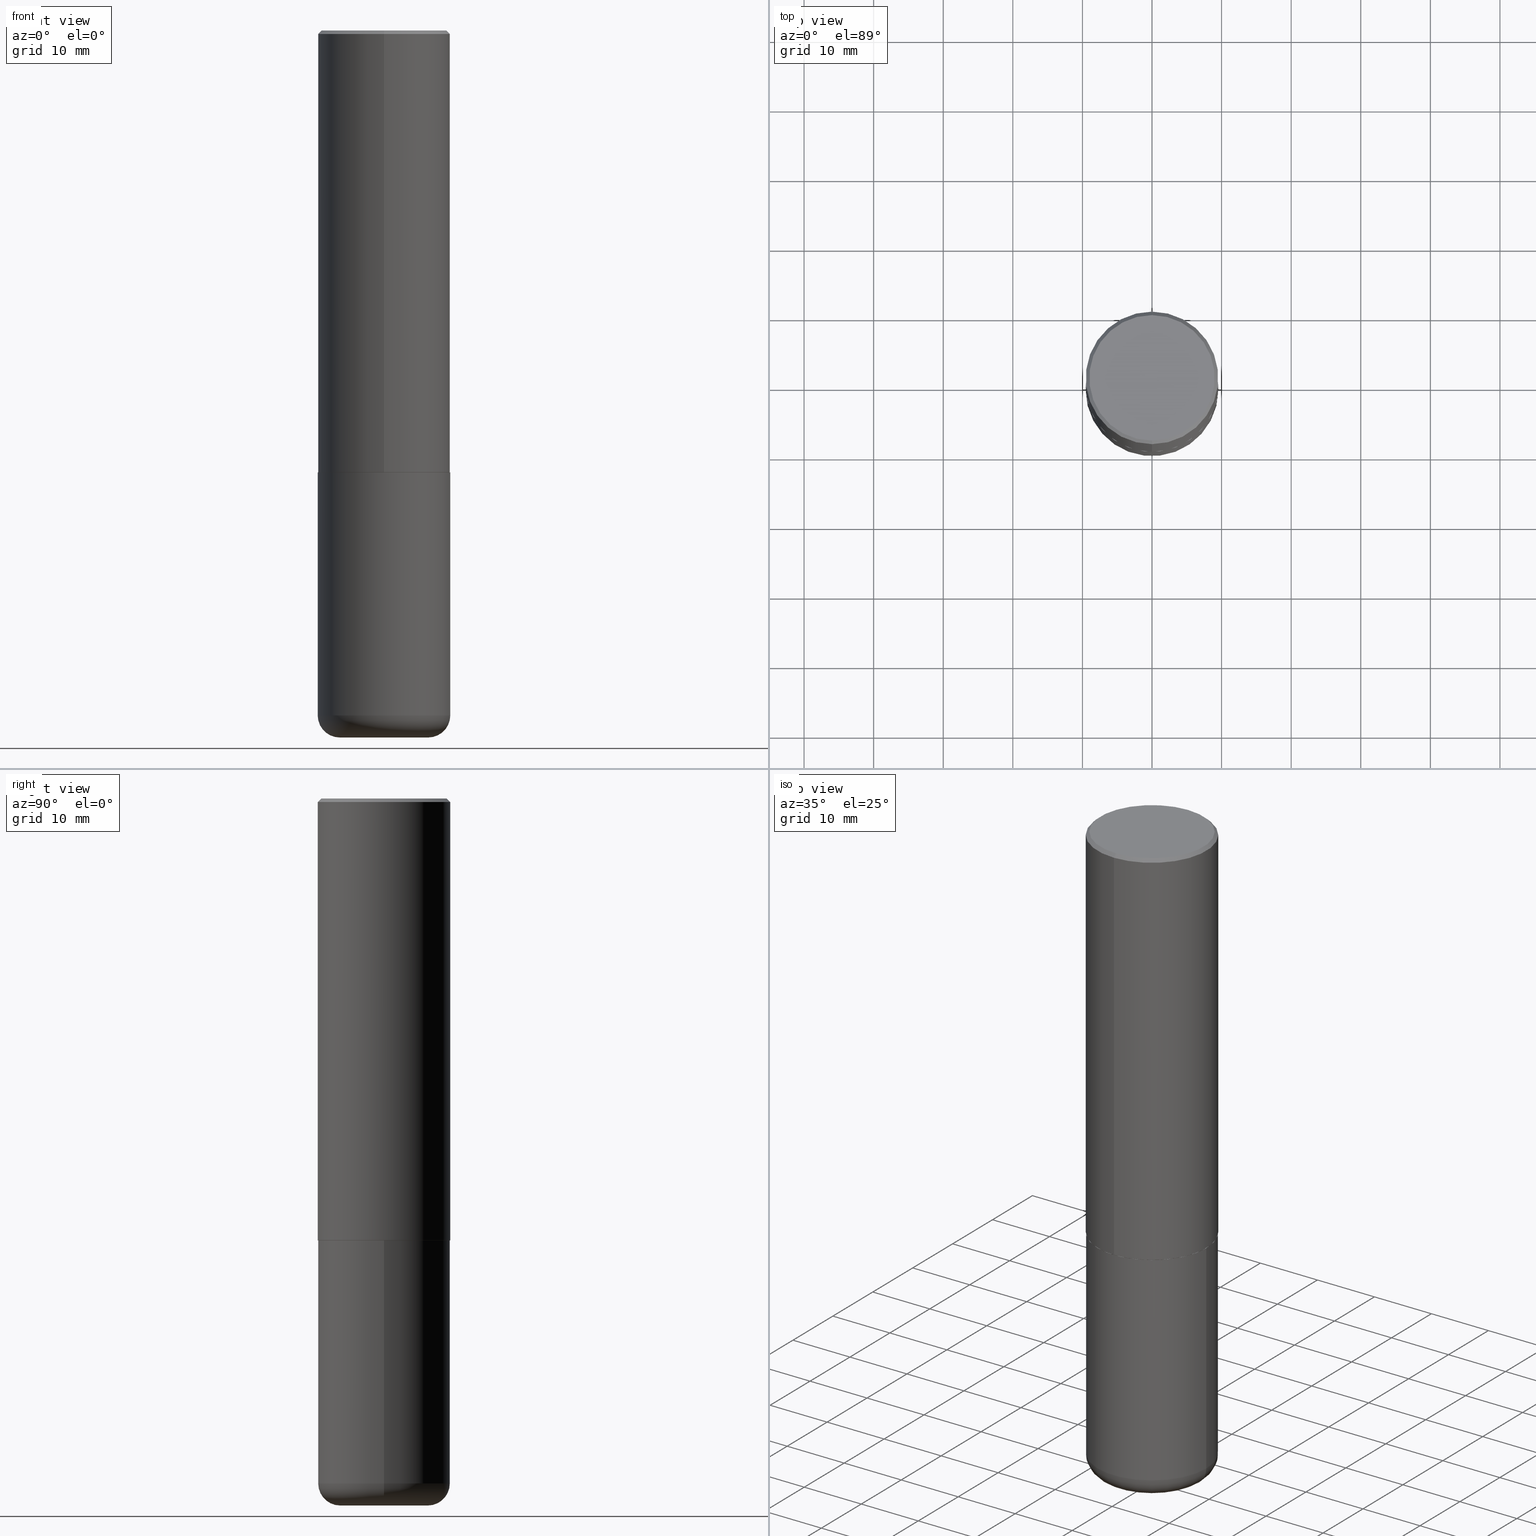
[diagram: canonical four-view strip — front | top / right | iso, engineering-drawing reading convention]
A machine part, canonical four-view strip (front | top / right | iso — engineering-drawing reading convention). The complete STEP part file that produces these views, byte-faithful:
ISO-10303-21;
HEADER;
FILE_DESCRIPTION (( 'STEP AP203' ),
    '1' );
FILE_NAME ('38391.STEP',
    '2024-03-03T02:32:34',
    ( '' ),
    ( '' ),
    'SwSTEP 2.0',
    'SolidWorks 2023',
    '' );
FILE_SCHEMA (( 'CONFIG_CONTROL_DESIGN' ));
ENDSEC;

DATA;
#1 = PRODUCT ( '38391', '38391', '', ( #162 ) ) ;
#2 = ORIENTED_EDGE ( 'NONE', *, *, #379, .T. ) ;
#3 = LENGTH_MEASURE_WITH_UNIT ( LENGTH_MEASURE( 0.02539999999999999897 ), #257 );
#4 = ORIENTED_EDGE ( 'NONE', *, *, #99, .T. ) ;
#5 = CALENDAR_DATE ( 2024, 2, 3 ) ;
#6 = ORIENTED_EDGE ( 'NONE', *, *, #26, .F. ) ;
#7 = TOROIDAL_SURFACE ( 'NONE', #121, 0.2500000000000000555, 0.1249999999999999167 ) ;
#8 = APPROVAL_DATE_TIME ( #317, #277 ) ;
#9 = CARTESIAN_POINT ( 'NONE',  ( 6.113672015462840371E-29, -8.728703347107863365E-15, -2.499999999999999556 ) ) ;
#10 = AXIS2_PLACEMENT_3D ( 'NONE', #253, #302, #174 ) ;
#11 = DIRECTION ( 'NONE',  ( 1.000000000000000000, -6.982962677686269077E-15, 0.000000000000000000 ) ) ;
#12 = EDGE_CURVE ( 'NONE', #126, #83, #15, .T. ) ;
#13 = CARTESIAN_POINT ( 'NONE',  ( 4.888791725774251015E-31, -6.986035709428135453E-17, -0.02000000000000008715 ) ) ;
#14 = DIRECTION ( 'NONE',  ( 1.000000000000000000, -6.982962677686263555E-15, 4.883557194083111219E-29 ) ) ;
#15 = CIRCLE ( 'NONE', #347, 0.3750000000000002776 ) ;
#16 = AXIS2_PLACEMENT_3D ( 'NONE', #309, #23, #320 ) ;
#17 = DIRECTION ( 'NONE',  ( 2.444395862887114472E-29, -3.493017854714053009E-15, -1.000000000000000000 ) ) ;
#18 = EDGE_CURVE ( 'NONE', #86, #278, #70, .T. ) ;
#19 = DIRECTION ( 'NONE',  ( -6.982962677686266711E-15, -1.000000000000000000, 3.491481338843145583E-15 ) ) ;
#20 = AXIS2_PLACEMENT_3D ( 'NONE', #167, #362, #69 ) ;
#21 = ORGANIZATION ( 'UNSPECIFIED', 'UNSPECIFIED', '' ) ;
#22 = ORIENTED_EDGE ( 'NONE', *, *, #26, .T. ) ;
#23 = DIRECTION ( 'NONE',  ( -2.444395862887114472E-29, 3.493017854714053009E-15, 1.000000000000000000 ) ) ;
#24 = DIRECTION ( 'NONE',  ( -1.000000000000000000, 6.982962677686265922E-15, -4.876176775795935793E-29 ) ) ;
#25 = VERTEX_POINT ( 'NONE', #202 ) ;
#26 = EDGE_CURVE ( 'NONE', #58, #416, #60, .T. ) ;
#27 = DIRECTION ( 'NONE',  ( -2.444395862887114472E-29, 3.493017854714053009E-15, 1.000000000000000000 ) ) ;
#28 = ORIENTED_EDGE ( 'NONE', *, *, #124, .T. ) ;
#29 = CARTESIAN_POINT ( 'NONE',  ( 0.000000000000000000, 0.000000000000000000, 0.000000000000000000 ) ) ;
#30 = PERSON_AND_ORGANIZATION_ROLE ( 'design_owner' ) ;
#31 = AXIS2_PLACEMENT_3D ( 'NONE', #242, #19, #213 ) ;
#32 = EDGE_LOOP ( 'NONE', ( #49, #262, #93, #388 ) ) ;
#33 = LOCAL_TIME ( 21, 32, 34.00000000000000000, #78 ) ;
#34 = DIRECTION ( 'NONE',  ( -4.851104656540957964E-15, -0.7071067811865491270, -0.7071067811865459074 ) ) ;
#35 = EDGE_LOOP ( 'NONE', ( #2, #28, #6, #284 ) ) ;
#36 = ORIENTED_EDGE ( 'NONE', *, *, #159, .T. ) ;
#37 = DIRECTION ( 'NONE',  ( 2.444395862887114472E-29, -3.493017854714053009E-15, -1.000000000000000000 ) ) ;
#38 = DIRECTION ( 'NONE',  ( -2.444395862887114192E-29, 3.493017854714053009E-15, 1.000000000000000000 ) ) ;
#39 = EDGE_CURVE ( 'NONE', #196, #377, #205, .T. ) ;
#40 = DIRECTION ( 'NONE',  ( -2.445468806185136597E-29, 3.491481338843145583E-15, 1.000000000000000000 ) ) ;
#41 = AXIS2_PLACEMENT_3D ( 'NONE', #225, #37, #358 ) ;
#42 = LINE ( 'NONE', #231, #393 ) ;
#43 = EDGE_LOOP ( 'NONE', ( #95, #130 ) ) ;
#44 = APPROVAL_ROLE ( '' ) ;
#45 = DIRECTION ( 'NONE',  ( -6.982962677686265922E-15, -1.000000000000000000, 3.493017854714053009E-15 ) ) ;
#46 = VECTOR ( 'NONE', #325, 39.37007874015748143 ) ;
#47 = CC_DESIGN_APPROVAL ( #193, ( #418 ) ) ;
#48 = CC_DESIGN_DATE_AND_TIME_ASSIGNMENT ( #287, #363, ( #201 ) ) ;
#49 = ORIENTED_EDGE ( 'NONE', *, *, #159, .F. ) ;
#50 = CARTESIAN_POINT ( 'NONE',  ( 2.657429831742835431E-15, 0.3739999999999912839, -2.500000000000001332 ) ) ;
#51 = ORIENTED_EDGE ( 'NONE', *, *, #217, .F. ) ;
#52 = DIRECTION ( 'NONE',  ( -2.445468806185136597E-29, 3.491481338843145583E-15, 1.000000000000000000 ) ) ;
#53 = EDGE_LOOP ( 'NONE', ( #348, #258, #192, #156 ) ) ;
#54 = CARTESIAN_POINT ( 'NONE',  ( 4.888791725774251015E-31, -6.986035709428135453E-17, -0.02000000000000008715 ) ) ;
#55 = VERTEX_POINT ( 'NONE', #396 ) ;
#56 = CARTESIAN_POINT ( 'NONE',  ( 2.618611004132350411E-15, 0.3749999999999999445, -0.02000000000000139513 ) ) ;
#57 = DIRECTION ( 'NONE',  ( -6.982962677686266711E-15, -1.000000000000000000, 2.921762560068730595E-15 ) ) ;
#58 = VERTEX_POINT ( 'NONE', #230 ) ;
#59 = APPLICATION_CONTEXT ( 'configuration controlled 3d designs of mechanical parts and assemblies' ) ;
#60 = CIRCLE ( 'NONE', #384, 0.3750000000000000555 ) ;
#61 = PERSON_AND_ORGANIZATION ( #310, #21 ) ;
#62 = AXIS2_PLACEMENT_3D ( 'NONE', #403, #142, #273 ) ;
#63 = ORIENTED_EDGE ( 'NONE', *, *, #306, .F. ) ;
#64 = ORIENTED_EDGE ( 'NONE', *, *, #12, .T. ) ;
#65 = DIRECTION ( 'NONE',  ( -2.444395862887114472E-29, 3.493017854714053009E-15, 1.000000000000000000 ) ) ;
#66 = CARTESIAN_POINT ( 'NONE',  ( 0.000000000000000000, 0.000000000000000000, 0.000000000000000000 ) ) ;
#67 = PERSON_AND_ORGANIZATION ( #310, #21 ) ;
#68 = EDGE_CURVE ( 'NONE', #416, #58, #259, .T. ) ;
#69 = DIRECTION ( 'NONE',  ( 1.000000000000000000, -6.982962677686263555E-15, 0.000000000000000000 ) ) ;
#70 = CIRCLE ( 'NONE', #232, 0.2500000000000000555 ) ;
#71 = CYLINDRICAL_SURFACE ( 'NONE', #181, 0.3750000000000001665 ) ;
#72 = DIRECTION ( 'NONE',  ( -2.444395862887114472E-29, 3.493017854714053009E-15, 1.000000000000000000 ) ) ;
#73 = CALENDAR_DATE ( 2024, 2, 3 ) ;
#74 = AXIS2_PLACEMENT_3D ( 'NONE', #134, #198, #133 ) ;
#75 = AXIS2_PLACEMENT_3D ( 'NONE', #119, #52, #220 ) ;
#76 = LOCAL_TIME ( 21, 32, 34.00000000000000000, #367 ) ;
#77 = LINE ( 'NONE', #336, #96 ) ;
#78 = COORDINATED_UNIVERSAL_TIME_OFFSET ( 5, 0, .BEHIND. ) ;
#79 = FACE_OUTER_BOUND ( 'NONE', #35, .T. ) ;
#80 = CARTESIAN_POINT ( 'NONE',  ( 6.113672015462840371E-29, -8.728703347107863365E-15, -2.499999999999999556 ) ) ;
#81 = DIRECTION ( 'NONE',  ( 6.982962677686265922E-15, 1.000000000000000000, -3.494488891895536035E-15 ) ) ;
#82 = CONICAL_SURFACE ( 'NONE', #16, 0.3739999999999999991, 0.7853981633974141952 ) ;
#83 = VERTEX_POINT ( 'NONE', #328 ) ;
#84 = LINE ( 'NONE', #50, #417 ) ;
#85 = EDGE_CURVE ( 'NONE', #83, #118, #395, .T. ) ;
#86 = VERTEX_POINT ( 'NONE', #101 ) ;
#87 = CLOSED_SHELL ( 'NONE', ( #187, #194, #339, #372, #399, #264, #333, #385 ) ) ;
#88 = AXIS2_PLACEMENT_3D ( 'NONE', #267, #171, #238 ) ;
#89 = DIRECTION ( 'NONE',  ( -2.444395862887114472E-29, 3.493017854714053009E-15, 1.000000000000000000 ) ) ;
#90 = CC_DESIGN_APPROVAL ( #412, ( #402 ) ) ;
#91 = ORIENTED_EDGE ( 'NONE', *, *, #346, .T. ) ;
#92 = CARTESIAN_POINT ( 'NONE',  ( 9.781875224740546387E-29, -1.396592535537258233E-14, -4.000000000000000000 ) ) ;
#93 = ORIENTED_EDGE ( 'NONE', *, *, #289, .T. ) ;
#94 = PERSON_AND_ORGANIZATION_ROLE ( 'creator' ) ;
#95 = ORIENTED_EDGE ( 'NONE', *, *, #321, .T. ) ;
#96 = VECTOR ( 'NONE', #203, 39.37007874015748143 ) ;
#97 = ORIENTED_EDGE ( 'NONE', *, *, #346, .F. ) ;
#98 = APPROVAL_DATE_TIME ( #387, #412 ) ;
#99 = EDGE_CURVE ( 'NONE', #83, #126, #237, .T. ) ;
#100 = APPROVAL_ROLE ( '' ) ;
#101 = CARTESIAN_POINT ( 'NONE',  ( -0.2500000000000000555, -1.152726172244457105E-14, -4.000000000000000000 ) ) ;
#102 = APPROVAL_PERSON_ORGANIZATION ( #369, #193, #44 ) ;
#103 = CC_DESIGN_PERSON_AND_ORGANIZATION_ASSIGNMENT ( #361, #94, ( #402 ) ) ;
#104 = CARTESIAN_POINT ( 'NONE',  ( -2.618611004132351200E-15, -0.3750000000000001665, 1.309881695517770421E-15 ) ) ;
#105 = PERSON_AND_ORGANIZATION_ROLE ( 'classification_officer' ) ;
#106 = COORDINATED_UNIVERSAL_TIME_OFFSET ( 5, 0, .BEHIND. ) ;
#107 = CYLINDRICAL_SURFACE ( 'NONE', #10, 0.3749999999999999445 ) ;
#108 = CIRCLE ( 'NONE', #329, 0.1249999999999999306 ) ;
#109 = DIRECTION ( 'NONE',  ( 2.438088387897960049E-29, -3.491481338843145188E-15, -1.000000000000000000 ) ) ;
#110 = EDGE_CURVE ( 'NONE', #55, #123, #301, .T. ) ;
#111 = FACE_OUTER_BOUND ( 'NONE', #43, .T. ) ;
#112 = CARTESIAN_POINT ( 'NONE',  ( 2.664535259100376486E-15, 0.3750000000000001665, -1.309881695517770421E-15 ) ) ;
#113 = ORIENTED_EDGE ( 'NONE', *, *, #243, .T. ) ;
#114 = AXIS2_PLACEMENT_3D ( 'NONE', #29, #65, #386 ) ;
#115 = EDGE_LOOP ( 'NONE', ( #246, #407, #219, #244 ) ) ;
#116 = EDGE_CURVE ( 'NONE', #377, #58, #77, .T. ) ;
#117 = DIRECTION ( 'NONE',  ( -1.000000000000000000, 7.105427357601000281E-15, 0.000000000000000000 ) ) ;
#118 = VERTEX_POINT ( 'NONE', #331 ) ;
#119 = CARTESIAN_POINT ( 'NONE',  ( 9.781875224740546387E-29, -1.396592535537258233E-14, -4.000000000000000000 ) ) ;
#120 = EDGE_LOOP ( 'NONE', ( #22, #381 ) ) ;
#121 = AXIS2_PLACEMENT_3D ( 'NONE', #280, #305, #177 ) ;
#122 = PLANE ( 'NONE',  #356 ) ;
#123 = VERTEX_POINT ( 'NONE', #391 ) ;
#124 = EDGE_CURVE ( 'NONE', #196, #416, #42, .T. ) ;
#125 = APPROVAL_ROLE ( '' ) ;
#126 = VERTEX_POINT ( 'NONE', #400 ) ;
#127 = CYLINDRICAL_SURFACE ( 'NONE', #210, 0.3749999999999999445 ) ;
#128 = CALENDAR_DATE ( 2024, 2, 3 ) ;
#129 = CIRCLE ( 'NONE', #75, 0.2500000000000000555 ) ;
#130 = ORIENTED_EDGE ( 'NONE', *, *, #269, .T. ) ;
#131 = DIMENSIONAL_EXPONENTS ( 1.000000000000000000, 0.000000000000000000, 0.000000000000000000, 0.000000000000000000, 0.000000000000000000, 0.000000000000000000, 0.000000000000000000 ) ;
#132 = PERSON_AND_ORGANIZATION_ROLE ( 'creator' ) ;
#133 = DIRECTION ( 'NONE',  ( 1.000000000000000000, -6.982962677686264344E-15, 0.000000000000000000 ) ) ;
#134 = CARTESIAN_POINT ( 'NONE',  ( 6.113672015462840371E-29, -8.728703347107863365E-15, -2.499999999999999556 ) ) ;
#135 = CIRCLE ( 'NONE', #234, 0.3750000000000000555 ) ;
#136 = DIRECTION ( 'NONE',  ( -2.445468806185136597E-29, 3.491481338843145583E-15, 1.000000000000000000 ) ) ;
#137 = PRODUCT_RELATED_PRODUCT_CATEGORY ( 'detail', '', ( #1 ) ) ;
#138 = ORIENTED_EDGE ( 'NONE', *, *, #110, .F. ) ;
#139 = CARTESIAN_POINT ( 'NONE',  ( 4.888791725774251015E-31, -6.986035709428135453E-17, -0.02000000000000008715 ) ) ;
#140 = ADVANCED_FACE ( 'NONE', ( #345 ), #7, .T. ) ;
#141 = CIRCLE ( 'NONE', #163, 0.3549999999999997602 ) ;
#142 = DIRECTION ( 'NONE',  ( -2.445468806185136597E-29, 3.491481338843145583E-15, 1.000000000000000000 ) ) ;
#143 = DIRECTION ( 'NONE',  ( -2.444395862887114192E-29, 3.493017854714053009E-15, 1.000000000000000000 ) ) ;
#144 = AXIS2_PLACEMENT_3D ( 'NONE', #13, #27, #352 ) ;
#145 = LOCAL_TIME ( 21, 32, 34.00000000000000000, #263 ) ;
#146 = CARTESIAN_POINT ( 'NONE',  ( -5.647657784886327300E-45, 8.070447908802484547E-31, 2.310451375995943946E-16 ) ) ;
#147 = CARTESIAN_POINT ( 'NONE',  ( 6.108545261354898806E-29, -8.729051618930418030E-15, -2.498999999999999666 ) ) ;
#148 = VERTEX_POINT ( 'NONE', #304 ) ;
#149 = CARTESIAN_POINT ( 'NONE',  ( -2.572686749164323547E-15, -0.3750000000000001110, -0.01999999999999877570 ) ) ;
#150 = EDGE_CURVE ( 'NONE', #126, #25, #274, .T. ) ;
#151 = AXIS2_PLACEMENT_3D ( 'NONE', #188, #136, #14 ) ;
#152 = CALENDAR_DATE ( 2024, 2, 3 ) ;
#153 = LOCAL_TIME ( 21, 32, 34.00000000000000000, #106 ) ;
#154 = FACE_OUTER_BOUND ( 'NONE', #115, .T. ) ;
#155 = APPROVAL_STATUS ( 'not_yet_approved' ) ;
#156 = ORIENTED_EDGE ( 'NONE', *, *, #173, .F. ) ;
#157 = LINE ( 'NONE', #56, #46 ) ;
#158 = PERSON_AND_ORGANIZATION ( #310, #21 ) ;
#159 = EDGE_CURVE ( 'NONE', #55, #126, #84, .T. ) ;
#160 = ORIENTED_EDGE ( 'NONE', *, *, #289, .F. ) ;
#161 = DIRECTION ( 'NONE',  ( -2.445468806185136597E-29, 3.491481338843145583E-15, 1.000000000000000000 ) ) ;
#162 = MECHANICAL_CONTEXT ( 'NONE', #59, 'mechanical' ) ;
#163 = AXIS2_PLACEMENT_3D ( 'NONE', #146, #89, #337 ) ;
#164 = DIRECTION ( 'NONE',  ( -2.444395862887114472E-29, 3.493017854714053009E-15, 1.000000000000000000 ) ) ;
#165 = DIRECTION ( 'NONE',  ( -2.444395862887114472E-29, 3.493017854714053009E-15, 1.000000000000000000 ) ) ;
#166 = APPROVAL_STATUS ( 'not_yet_approved' ) ;
#167 = CARTESIAN_POINT ( 'NONE',  ( 9.476191623967404313E-29, -1.352949018801718908E-14, -3.875000000000000000 ) ) ;
#168 = APPROVAL_DATE_TIME ( #335, #193 ) ;
#169 = CONICAL_SURFACE ( 'NONE', #88, 0.3739999999999999991, 0.7853981633974141952 ) ;
#170 = CC_DESIGN_SECURITY_CLASSIFICATION ( #418, ( #402 ) ) ;
#171 = DIRECTION ( 'NONE',  ( -2.444395862887114472E-29, 3.493017854714053009E-15, 1.000000000000000000 ) ) ;
#172 = CC_DESIGN_PERSON_AND_ORGANIZATION_ASSIGNMENT ( #199, #290, ( #402 ) ) ;
#173 = EDGE_CURVE ( 'NONE', #278, #377, #401, .T. ) ;
#174 = DIRECTION ( 'NONE',  ( 1.000000000000000000, -6.982962677686266711E-15, 4.876176775795935793E-29 ) ) ;
#175 = FACE_OUTER_BOUND ( 'NONE', #288, .T. ) ;
#176 = VECTOR ( 'NONE', #283, 39.37007874015748854 ) ;
#177 = DIRECTION ( 'NONE',  ( 1.000000000000000000, -6.982962677686263555E-15, 4.883557194083111219E-29 ) ) ;
#178 = ORIENTED_EDGE ( 'NONE', *, *, #85, .T. ) ;
#179 = EDGE_CURVE ( 'NONE', #86, #196, #108, .T. ) ;
#180 = CLOSED_SHELL ( 'NONE', ( #295, #140, #279, #249, #368, #303 ) ) ;
#181 = AXIS2_PLACEMENT_3D ( 'NONE', #223, #165, #296 ) ;
#182 = DIRECTION ( 'NONE',  ( -1.000000000000000000, 6.982962677686265922E-15, -4.876176775795935793E-29 ) ) ;
#183 = EDGE_LOOP ( 'NONE', ( #63, #215 ) ) ;
#184 = FACE_OUTER_BOUND ( 'NONE', #32, .T. ) ;
#185 = DIRECTION ( 'NONE',  ( -2.444395862887114472E-29, 3.493017854714053009E-15, 1.000000000000000000 ) ) ;
#186 = ORIENTED_EDGE ( 'NONE', *, *, #327, .F. ) ;
#187 = ADVANCED_FACE ( 'NONE', ( #375 ), #82, .T. ) ;
#188 = CARTESIAN_POINT ( 'NONE',  ( 9.476191623967404313E-29, -1.352949018801718908E-14, -3.875000000000000000 ) ) ;
#189 = EDGE_LOOP ( 'NONE', ( #323, #383, #413, #382 ) ) ;
#190 = LOCAL_TIME ( 21, 32, 34.00000000000000000, #255 ) ;
#191 = APPLICATION_PROTOCOL_DEFINITION ( 'international standard', 'config_control_design', 1994, #227 ) ;
#192 = ORIENTED_EDGE ( 'NONE', *, *, #379, .F. ) ;
#193 = APPROVAL ( #166, 'UNSPECIFIED' ) ;
#194 = ADVANCED_FACE ( 'NONE', ( #351 ), #292, .T. ) ;
#195 =( NAMED_UNIT ( * ) PLANE_ANGLE_UNIT ( ) SI_UNIT ( $, .RADIAN. ) );
#196 = VERTEX_POINT ( 'NONE', #414 ) ;
#197 = APPLICATION_PROTOCOL_DEFINITION ( 'international standard', 'config_control_design', 1994, #59 ) ;
#198 = DIRECTION ( 'NONE',  ( -2.445468806185136597E-29, 3.491481338843145583E-15, 1.000000000000000000 ) ) ;
#199 = PERSON_AND_ORGANIZATION ( #310, #21 ) ;
#200 = TOROIDAL_SURFACE ( 'NONE', #151, 0.2500000000000000555, 0.1249999999999999167 ) ;
#201 = PRODUCT_DEFINITION ( 'UNKNOWN', '', #402, #235 ) ;
#202 = CARTESIAN_POINT ( 'NONE',  ( 2.618611004132350411E-15, 0.3749999999999999445, -0.02000000000000139513 ) ) ;
#203 = DIRECTION ( 'NONE',  ( -2.445468806185136877E-29, 3.491481338843145188E-15, 1.000000000000000000 ) ) ;
#204 = DIRECTION ( 'NONE',  ( -6.982962677686266711E-15, -1.000000000000000000, 2.913971193241878794E-15 ) ) ;
#205 = CIRCLE ( 'NONE', #20, 0.3749999999999999445 ) ;
#206 = VECTOR ( 'NONE', #143, 39.37007874015748143 ) ;
#207 = CARTESIAN_POINT ( 'NONE',  ( 0.2500000000000000555, -1.571166602479415059E-14, -4.000000000000000000 ) ) ;
#208 = MANIFOLD_SOLID_BREP ( 'Body-Move/Copy2[1]', #180 ) ;
#209 = PLANE ( 'NONE',  #334 ) ;
#210 = AXIS2_PLACEMENT_3D ( 'NONE', #357, #161, #248 ) ;
#211 = CARTESIAN_POINT ( 'NONE',  ( 0.3749999999999999445, -1.614810119214953752E-14, -3.875000000000000000 ) ) ;
#212 = AXIS2_PLACEMENT_3D ( 'NONE', #297, #72, #204 ) ;
#213 = DIRECTION ( 'NONE',  ( 1.000000000000000000, -6.982962677686266711E-15, 0.000000000000000000 ) ) ;
#214 = MANIFOLD_SOLID_BREP ( 'Body-Move/Copy2[2]', #87 ) ;
#215 = ORIENTED_EDGE ( 'NONE', *, *, #18, .F. ) ;
#216 = CIRCLE ( 'NONE', #341, 0.3739999999999999991 ) ;
#217 = EDGE_CURVE ( 'NONE', #148, #25, #157, .T. ) ;
#218 = PLANE ( 'NONE',  #260 ) ;
#219 = ORIENTED_EDGE ( 'NONE', *, *, #116, .T. ) ;
#220 = DIRECTION ( 'NONE',  ( 1.000000000000000000, -6.982962677686269077E-15, 0.000000000000000000 ) ) ;
#221 = EDGE_LOOP ( 'NONE', ( #324, #36, #251, #160 ) ) ;
#222 = ADVANCED_BREP_SHAPE_REPRESENTATION ( '38391', ( #208, #214, #286 ), #394 ) ;
#223 = CARTESIAN_POINT ( 'NONE',  ( 0.000000000000000000, 0.000000000000000000, 0.000000000000000000 ) ) ;
#224 = ORIENTED_EDGE ( 'NONE', *, *, #217, .T. ) ;
#225 = CARTESIAN_POINT ( 'NONE',  ( 2.478951750578623026E-15, 0.3549999999999997602, -1.124498769623690920E-15 ) ) ;
#226 = DIRECTION ( 'NONE',  ( -6.982962677686266711E-15, -1.000000000000000000, 2.913971193241878794E-15 ) ) ;
#227 = APPLICATION_CONTEXT ( 'configuration controlled 3d designs of mechanical parts and assemblies' ) ;
#228 = DIRECTION ( 'NONE',  ( 1.000000000000000000, -6.982962677686264344E-15, 0.000000000000000000 ) ) ;
#229 = CARTESIAN_POINT ( 'NONE',  ( -0.3750000000000000555, -8.464561508462150527E-15, -2.499999999999999556 ) ) ;
#230 = CARTESIAN_POINT ( 'NONE',  ( 0.3750000000000000555, -1.134731435124021180E-14, -2.499999999999999556 ) ) ;
#231 = CARTESIAN_POINT ( 'NONE',  ( -0.3749999999999999445, 2.664535259100375303E-15, -1.844600658845589318E-29 ) ) ;
#232 = AXIS2_PLACEMENT_3D ( 'NONE', #390, #330, #11 ) ;
#233 = CC_DESIGN_PERSON_AND_ORGANIZATION_ASSIGNMENT ( #61, #30, ( #1 ) ) ;
#234 = AXIS2_PLACEMENT_3D ( 'NONE', #54, #185, #370 ) ;
#235 = DESIGN_CONTEXT ( 'detailed design', #227, 'design' ) ;
#236 = PERSON_AND_ORGANIZATION ( #310, #21 ) ;
#237 = CIRCLE ( 'NONE', #212, 0.3750000000000002776 ) ;
#238 = DIRECTION ( 'NONE',  ( -6.982962677686266711E-15, -1.000000000000000000, 2.921762560068730595E-15 ) ) ;
#239 = DATE_TIME_ROLE ( 'classification_date' ) ;
#240 = DIRECTION ( 'NONE',  ( 2.438088387897960049E-29, -3.491481338843145188E-15, -1.000000000000000000 ) ) ;
#241 = PLANE ( 'NONE',  #41 ) ;
#242 = CARTESIAN_POINT ( 'NONE',  ( 0.2500000000000000555, -1.527523085743875734E-14, -3.875000000000000000 ) ) ;
#243 = EDGE_CURVE ( 'NONE', #344, #118, #316, .T. ) ;
#244 = ORIENTED_EDGE ( 'NONE', *, *, #68, .F. ) ;
#245 = AXIS2_PLACEMENT_3D ( 'NONE', #300, #314, #272 ) ;
#246 = ORIENTED_EDGE ( 'NONE', *, *, #124, .F. ) ;
#247 = CC_DESIGN_PERSON_AND_ORGANIZATION_ASSIGNMENT ( #293, #132, ( #201 ) ) ;
#248 = DIRECTION ( 'NONE',  ( 1.000000000000000000, -6.982962677686266711E-15, 4.876176775795935793E-29 ) ) ;
#249 = ADVANCED_FACE ( 'NONE', ( #154 ), #127, .T. ) ;
#250 = DIRECTION ( 'NONE',  ( -2.444395862887114472E-29, 3.493017854714053009E-15, 1.000000000000000000 ) ) ;
#251 = ORIENTED_EDGE ( 'NONE', *, *, #99, .F. ) ;
#252 = CIRCLE ( 'NONE', #62, 0.3749999999999999445 ) ;
#253 = CARTESIAN_POINT ( 'NONE',  ( 0.000000000000000000, 0.000000000000000000, 0.000000000000000000 ) ) ;
#254 = EDGE_LOOP ( 'NONE', ( #315, #359, #224, #313 ) ) ;
#255 = COORDINATED_UNIVERSAL_TIME_OFFSET ( 5, 0, .BEHIND. ) ;
#256 = ORIENTED_EDGE ( 'NONE', *, *, #150, .T. ) ;
#257 =( LENGTH_UNIT ( ) NAMED_UNIT ( * ) SI_UNIT ( $, .METRE. ) );
#258 = ORIENTED_EDGE ( 'NONE', *, *, #179, .T. ) ;
#259 = CIRCLE ( 'NONE', #74, 0.3750000000000000555 ) ;
#260 = AXIS2_PLACEMENT_3D ( 'NONE', #92, #240, #24 ) ;
#261 = APPROVAL_STATUS ( 'not_yet_approved' ) ;
#262 = ORIENTED_EDGE ( 'NONE', *, *, #110, .T. ) ;
#263 = COORDINATED_UNIVERSAL_TIME_OFFSET ( 5, 0, .BEHIND. ) ;
#264 = ADVANCED_FACE ( 'NONE', ( #184 ), #169, .T. ) ;
#265 = DIRECTION ( 'NONE',  ( 0.000000000000000000, 0.000000000000000000, 1.000000000000000000 ) ) ;
#266 = AXIS2_PLACEMENT_3D ( 'NONE', #332, #164, #397 ) ;
#267 = CARTESIAN_POINT ( 'NONE',  ( 6.110989657217786461E-29, -8.732544636785133509E-15, -2.500000000000000000 ) ) ;
#268 = CC_DESIGN_DATE_AND_TIME_ASSIGNMENT ( #404, #239, ( #418 ) ) ;
#269 = EDGE_CURVE ( 'NONE', #344, #148, #364, .T. ) ;
#270 = SHAPE_DEFINITION_REPRESENTATION ( #312, #222 ) ;
#271 = FACE_OUTER_BOUND ( 'NONE', #254, .T. ) ;
#272 = DIRECTION ( 'NONE',  ( 6.982962677686265922E-15, 1.000000000000000000, -3.494488891895536035E-15 ) ) ;
#273 = DIRECTION ( 'NONE',  ( 1.000000000000000000, -6.982962677686263555E-15, 0.000000000000000000 ) ) ;
#274 = LINE ( 'NONE', #112, #206 ) ;
#275 = CONICAL_SURFACE ( 'NONE', #245, 0.3750000000000000555, 0.7853981633974471688 ) ;
#276 = CARTESIAN_POINT ( 'NONE',  ( -0.2500000000000000555, -1.175313334861693862E-14, -3.875000000000000000 ) ) ;
#277 = APPROVAL ( #261, 'UNSPECIFIED' ) ;
#278 = VERTEX_POINT ( 'NONE', #207 ) ;
#279 = ADVANCED_FACE ( 'NONE', ( #380 ), #122, .F. ) ;
#280 = CARTESIAN_POINT ( 'NONE',  ( 9.476191623967404313E-29, -1.352949018801718908E-14, -3.875000000000000000 ) ) ;
#281 = CARTESIAN_POINT ( 'NONE',  ( 6.110989657217786461E-29, -8.732544636785133509E-15, -2.500000000000000000 ) ) ;
#282 = EDGE_LOOP ( 'NONE', ( #4, #256, #97, #350 ) ) ;
#283 = DIRECTION ( 'NONE',  ( -4.937700262164378437E-15, -0.7071067811865208164, 0.7071067811865739960 ) ) ;
#284 = ORIENTED_EDGE ( 'NONE', *, *, #116, .F. ) ;
#285 = VECTOR ( 'NONE', #34, 39.37007874015748143 ) ;
#286 = AXIS2_PLACEMENT_3D ( 'NONE', #66, #265, #322 ) ;
#287 = DATE_AND_TIME ( #152, #145 ) ;
#288 = EDGE_LOOP ( 'NONE', ( #410, #113, #91, #51 ) ) ;
#289 = EDGE_CURVE ( 'NONE', #123, #83, #311, .T. ) ;
#290 = PERSON_AND_ORGANIZATION_ROLE ( 'design_supplier' ) ;
#291 = DIRECTION ( 'NONE',  ( -2.444395862887114472E-29, 3.493017854714053009E-15, 1.000000000000000000 ) ) ;
#292 = CYLINDRICAL_SURFACE ( 'NONE', #114, 0.3750000000000001665 ) ;
#293 = PERSON_AND_ORGANIZATION ( #310, #21 ) ;
#294 = EDGE_LOOP ( 'NONE', ( #353, #64, #178, #318 ) ) ;
#295 = ADVANCED_FACE ( 'NONE', ( #79 ), #107, .T. ) ;
#296 = DIRECTION ( 'NONE',  ( -6.982962677686266711E-15, -1.000000000000000000, 3.493017854714053009E-15 ) ) ;
#297 = CARTESIAN_POINT ( 'NONE',  ( 6.108545261354898806E-29, -8.729051618930418030E-15, -2.498999999999999666 ) ) ;
#298 = CC_DESIGN_PERSON_AND_ORGANIZATION_ASSIGNMENT ( #236, #105, ( #418 ) ) ;
#299 = CONICAL_SURFACE ( 'NONE', #408, 0.3750000000000000555, 0.7853981633974471688 ) ;
#300 = CARTESIAN_POINT ( 'NONE',  ( 4.888791725774251015E-31, -6.986035709428135453E-17, -0.02000000000000008715 ) ) ;
#301 = CIRCLE ( 'NONE', #266, 0.3739999999999999991 ) ;
#302 = DIRECTION ( 'NONE',  ( -2.445468806185136597E-29, 3.491481338843145583E-15, 1.000000000000000000 ) ) ;
#303 = ADVANCED_FACE ( 'NONE', ( #343 ), #218, .T. ) ;
#304 = CARTESIAN_POINT ( 'NONE',  ( 2.548781377355486718E-15, 0.3549999999999997602, -1.008976200823893402E-15 ) ) ;
#305 = DIRECTION ( 'NONE',  ( -2.445468806185136597E-29, 3.491481338843145583E-15, 1.000000000000000000 ) ) ;
#306 = EDGE_CURVE ( 'NONE', #278, #86, #129, .T. ) ;
#307 = VECTOR ( 'NONE', #38, 39.37007874015748143 ) ;
#308 = APPROVAL_PERSON_ORGANIZATION ( #158, #277, #100 ) ;
#309 = CARTESIAN_POINT ( 'NONE',  ( 6.110989657217786461E-29, -8.732544636785133509E-15, -2.500000000000000000 ) ) ;
#310 = PERSON ( 'UNSPECIFIED', 'UNSPECIFIED', 'UNSPECIFIED', ('UNSPECIFIED'), ('UNSPECIFIED'), ('UNSPECIFIED') ) ;
#311 = LINE ( 'NONE', #398, #176 ) ;
#312 = PRODUCT_DEFINITION_SHAPE ( 'NONE', 'NONE',  #201 ) ;
#313 = ORIENTED_EDGE ( 'NONE', *, *, #360, .T. ) ;
#314 = DIRECTION ( 'NONE',  ( 2.444395862887114472E-29, -3.493017854714053009E-15, -1.000000000000000000 ) ) ;
#315 = ORIENTED_EDGE ( 'NONE', *, *, #243, .F. ) ;
#316 = LINE ( 'NONE', #149, #285 ) ;
#317 = DATE_AND_TIME ( #128, #76 ) ;
#318 = ORIENTED_EDGE ( 'NONE', *, *, #360, .F. ) ;
#319 = AXIS2_PLACEMENT_3D ( 'NONE', #415, #373, #411 ) ;
#320 = DIRECTION ( 'NONE',  ( -6.982962677686266711E-15, -1.000000000000000000, 2.921762560068730595E-15 ) ) ;
#321 = EDGE_CURVE ( 'NONE', #148, #344, #141, .T. ) ;
#322 = DIRECTION ( 'NONE',  ( 1.000000000000000000, 0.000000000000000000, 0.000000000000000000 ) ) ;
#323 = ORIENTED_EDGE ( 'NONE', *, *, #179, .F. ) ;
#324 = ORIENTED_EDGE ( 'NONE', *, *, #327, .T. ) ;
#325 = DIRECTION ( 'NONE',  ( 4.937700262164541731E-15, 0.7071067811865442421, -0.7071067811865507924 ) ) ;
#326 = FACE_OUTER_BOUND ( 'NONE', #294, .T. ) ;
#327 = EDGE_CURVE ( 'NONE', #123, #55, #216, .T. ) ;
#328 = CARTESIAN_POINT ( 'NONE',  ( -2.618611004132290852E-15, -0.3750000000000090483, -2.498999999999998778 ) ) ;
#329 = AXIS2_PLACEMENT_3D ( 'NONE', #276, #409, #117 ) ;
#330 = DIRECTION ( 'NONE',  ( -2.445468806185136597E-29, 3.491481338843145583E-15, 1.000000000000000000 ) ) ;
#331 = CARTESIAN_POINT ( 'NONE',  ( -2.572686749164323547E-15, -0.3750000000000001110, -0.01999999999999877570 ) ) ;
#332 = CARTESIAN_POINT ( 'NONE',  ( 6.110989657217786461E-29, -8.732544636785133509E-15, -2.500000000000000000 ) ) ;
#333 = ADVANCED_FACE ( 'NONE', ( #374 ), #209, .F. ) ;
#334 = AXIS2_PLACEMENT_3D ( 'NONE', #340, #376, #45 ) ;
#335 = DATE_AND_TIME ( #338, #153 ) ;
#336 = CARTESIAN_POINT ( 'NONE',  ( 0.3749999999999999445, -2.618611004132349622E-15, 1.828566290923475642E-29 ) ) ;
#337 = DIRECTION ( 'NONE',  ( -6.982962677686266711E-15, -1.000000000000000000, 3.493017854714052220E-15 ) ) ;
#338 = CALENDAR_DATE ( 2024, 2, 3 ) ;
#339 = ADVANCED_FACE ( 'NONE', ( #175 ), #275, .T. ) ;
#340 = CARTESIAN_POINT ( 'NONE',  ( 6.110989657217786461E-29, -8.732544636785133509E-15, -2.500000000000000000 ) ) ;
#341 = AXIS2_PLACEMENT_3D ( 'NONE', #281, #250, #57 ) ;
#342 = CC_DESIGN_APPROVAL ( #277, ( #201 ) ) ;
#343 = FACE_OUTER_BOUND ( 'NONE', #183, .T. ) ;
#344 = VERTEX_POINT ( 'NONE', #349 ) ;
#345 = FACE_OUTER_BOUND ( 'NONE', #53, .T. ) ;
#346 = EDGE_CURVE ( 'NONE', #118, #25, #135, .T. ) ;
#347 = AXIS2_PLACEMENT_3D ( 'NONE', #147, #291, #226 ) ;
#348 = ORIENTED_EDGE ( 'NONE', *, *, #306, .T. ) ;
#349 = CARTESIAN_POINT ( 'NONE',  ( -2.504081769186607821E-15, -0.3549999999999997602, 1.471066476023082684E-15 ) ) ;
#350 = ORIENTED_EDGE ( 'NONE', *, *, #85, .F. ) ;
#351 = FACE_OUTER_BOUND ( 'NONE', #282, .T. ) ;
#352 = DIRECTION ( 'NONE',  ( -6.982962677686265922E-15, -1.000000000000000000, 3.494488891895536035E-15 ) ) ;
#353 = ORIENTED_EDGE ( 'NONE', *, *, #150, .F. ) ;
#354 = SECURITY_CLASSIFICATION_LEVEL ( 'unclassified' ) ;
#355 = EDGE_LOOP ( 'NONE', ( #186, #138 ) ) ;
#356 = AXIS2_PLACEMENT_3D ( 'NONE', #80, #109, #182 ) ;
#357 = CARTESIAN_POINT ( 'NONE',  ( 0.000000000000000000, 0.000000000000000000, 0.000000000000000000 ) ) ;
#358 = DIRECTION ( 'NONE',  ( 6.982962677686265922E-15, 1.000000000000000000, -3.493017854714053009E-15 ) ) ;
#359 = ORIENTED_EDGE ( 'NONE', *, *, #321, .F. ) ;
#360 = EDGE_CURVE ( 'NONE', #25, #118, #378, .T. ) ;
#361 = PERSON_AND_ORGANIZATION ( #310, #21 ) ;
#362 = DIRECTION ( 'NONE',  ( -2.445468806185136597E-29, 3.491481338843145583E-15, 1.000000000000000000 ) ) ;
#363 = DATE_TIME_ROLE ( 'creation_date' ) ;
#364 = CIRCLE ( 'NONE', #319, 0.3549999999999997602 ) ;
#365 = DIRECTION ( 'NONE',  ( -2.445468806185136877E-29, 3.491481338843145188E-15, 1.000000000000000000 ) ) ;
#366 = APPROVAL_PERSON_ORGANIZATION ( #67, #412, #125 ) ;
#367 = COORDINATED_UNIVERSAL_TIME_OFFSET ( 5, 0, .BEHIND. ) ;
#368 = ADVANCED_FACE ( 'NONE', ( #405 ), #200, .T. ) ;
#369 = PERSON_AND_ORGANIZATION ( #310, #21 ) ;
#370 = DIRECTION ( 'NONE',  ( -6.982962677686265922E-15, -1.000000000000000000, 3.494488891895536035E-15 ) ) ;
#371 = UNCERTAINTY_MEASURE_WITH_UNIT (LENGTH_MEASURE( 1.000000000000000082E-05 ), #389, 'distance_accuracy_value', 'NONE');
#372 = ADVANCED_FACE ( 'NONE', ( #271 ), #299, .T. ) ;
#373 = DIRECTION ( 'NONE',  ( -2.444395862887114472E-29, 3.493017854714053009E-15, 1.000000000000000000 ) ) ;
#374 = FACE_OUTER_BOUND ( 'NONE', #355, .T. ) ;
#375 = FACE_OUTER_BOUND ( 'NONE', #221, .T. ) ;
#376 = DIRECTION ( 'NONE',  ( -2.444395862887114472E-29, 3.493017854714053009E-15, 1.000000000000000000 ) ) ;
#377 = VERTEX_POINT ( 'NONE', #211 ) ;
#378 = CIRCLE ( 'NONE', #144, 0.3750000000000000555 ) ;
#379 = EDGE_CURVE ( 'NONE', #377, #196, #252, .T. ) ;
#380 = FACE_OUTER_BOUND ( 'NONE', #120, .T. ) ;
#381 = ORIENTED_EDGE ( 'NONE', *, *, #68, .T. ) ;
#382 = ORIENTED_EDGE ( 'NONE', *, *, #39, .F. ) ;
#383 = ORIENTED_EDGE ( 'NONE', *, *, #18, .T. ) ;
#384 = AXIS2_PLACEMENT_3D ( 'NONE', #9, #40, #228 ) ;
#385 = ADVANCED_FACE ( 'NONE', ( #111 ), #241, .F. ) ;
#386 = DIRECTION ( 'NONE',  ( -6.982962677686266711E-15, -1.000000000000000000, 3.493017854714053009E-15 ) ) ;
#387 = DATE_AND_TIME ( #5, #190 ) ;
#388 = ORIENTED_EDGE ( 'NONE', *, *, #12, .F. ) ;
#389 =( CONVERSION_BASED_UNIT ( 'INCH', #3 ) LENGTH_UNIT ( ) NAMED_UNIT ( #131 ) );
#390 = CARTESIAN_POINT ( 'NONE',  ( 9.781875224740546387E-29, -1.396592535537258233E-14, -4.000000000000000000 ) ) ;
#391 = CARTESIAN_POINT ( 'NONE',  ( -2.611628041454602471E-15, -0.3740000000000087699, -2.499999999999999112 ) ) ;
#392 =( NAMED_UNIT ( * ) SI_UNIT ( $, .STERADIAN. ) SOLID_ANGLE_UNIT ( ) );
#393 = VECTOR ( 'NONE', #365, 39.37007874015748143 ) ;
#394 =( GEOMETRIC_REPRESENTATION_CONTEXT ( 3 ) GLOBAL_UNCERTAINTY_ASSIGNED_CONTEXT ( ( #371 ) ) GLOBAL_UNIT_ASSIGNED_CONTEXT ( ( #389, #195, #392 ) ) REPRESENTATION_CONTEXT ( 'NONE', 'WORKASPACE' ) );
#395 = LINE ( 'NONE', #104, #307 ) ;
#396 = CARTESIAN_POINT ( 'NONE',  ( 2.660982545421636724E-15, 0.3739999999999912839, -2.500000000000001332 ) ) ;
#397 = DIRECTION ( 'NONE',  ( -6.982962677686266711E-15, -1.000000000000000000, 2.921762560068730595E-15 ) ) ;
#398 = CARTESIAN_POINT ( 'NONE',  ( -2.611628041454602471E-15, -0.3740000000000087699, -2.499999999999999112 ) ) ;
#399 = ADVANCED_FACE ( 'NONE', ( #326 ), #71, .T. ) ;
#400 = CARTESIAN_POINT ( 'NONE',  ( 2.664535259100408040E-15, 0.3749999999999915623, -2.499000000000000998 ) ) ;
#401 = CIRCLE ( 'NONE', #31, 0.1249999999999999306 ) ;
#402 = PRODUCT_DEFINITION_FORMATION_WITH_SPECIFIED_SOURCE ( 'ANY', '', #1, .NOT_KNOWN. ) ;
#403 = CARTESIAN_POINT ( 'NONE',  ( 9.476191623967404313E-29, -1.352949018801718908E-14, -3.875000000000000000 ) ) ;
#404 = DATE_AND_TIME ( #73, #33 ) ;
#405 = FACE_OUTER_BOUND ( 'NONE', #189, .T. ) ;
#406 = DIRECTION ( 'NONE',  ( 5.024295867787889629E-15, 0.7071067811865257013, 0.7071067811865691111 ) ) ;
#407 = ORIENTED_EDGE ( 'NONE', *, *, #39, .T. ) ;
#408 = AXIS2_PLACEMENT_3D ( 'NONE', #139, #17, #81 ) ;
#409 = DIRECTION ( 'NONE',  ( 7.105427357601001859E-15, 1.000000000000000000, -3.491481338843145583E-15 ) ) ;
#410 = ORIENTED_EDGE ( 'NONE', *, *, #269, .F. ) ;
#411 = DIRECTION ( 'NONE',  ( -6.982962677686266711E-15, -1.000000000000000000, 3.493017854714052220E-15 ) ) ;
#412 = APPROVAL ( #155, 'UNSPECIFIED' ) ;
#413 = ORIENTED_EDGE ( 'NONE', *, *, #173, .T. ) ;
#414 = CARTESIAN_POINT ( 'NONE',  ( -0.3749999999999999445, -1.086495492891681496E-14, -3.875000000000000000 ) ) ;
#415 = CARTESIAN_POINT ( 'NONE',  ( -5.647657784886327300E-45, 8.070447908802484547E-31, 2.310451375995943946E-16 ) ) ;
#416 = VERTEX_POINT ( 'NONE', #229 ) ;
#417 = VECTOR ( 'NONE', #406, 39.37007874015748854 ) ;
#418 = SECURITY_CLASSIFICATION ( '', '', #354 ) ;
ENDSEC;
END-ISO-10303-21;
